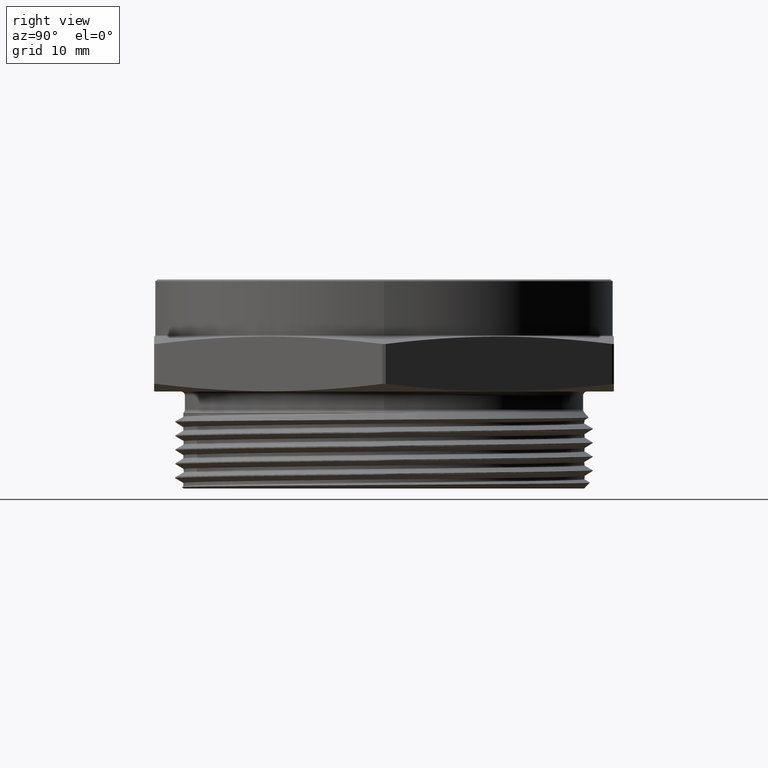
[diagram: clean part render]
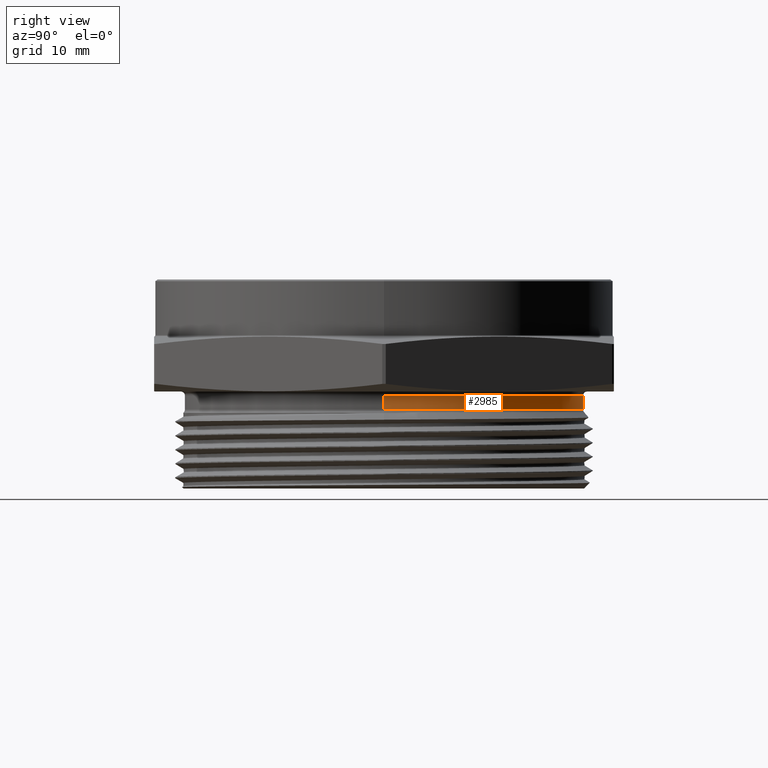
[diagram: same view with one face highlighted and labeled with its STEP entity id]
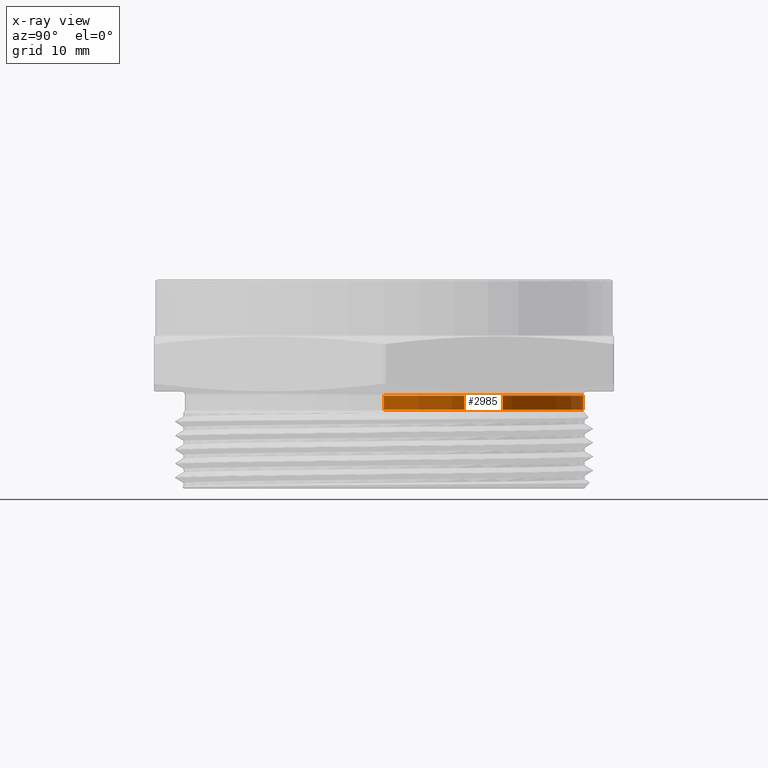
[diagram: x-ray of the same camera — body ghosted, the highlighted face saturated]
A machine part, right view. The second image highlights one B-rep face of the part: STEP entity #2985.
The next image is the same camera in x-ray: the body ghosted, the highlighted face saturated — about 0% of this face is hidden behind the body in this view.
In plain terms, the highlighted cylindrical surface (partial cylindrical patch) has radius 30.2387 mm, axis along (-0, -0, 1).
Its self-contained STEP definition (entity closure, byte-faithful):
#44 = VERTEX_POINT ( 'NONE', #3312 ) ;
#51 = VERTEX_POINT ( 'NONE', #3307 ) ;
#60 = VERTEX_POINT ( 'NONE', #3298 ) ;
#65 = VERTEX_POINT ( 'NONE', #3293 ) ;
#136 = ORIENTED_EDGE ( 'NONE', *, *, #2729, .T. ) ;
#137 = ORIENTED_EDGE ( 'NONE', *, *, #2730, .T. ) ;
#138 = ORIENTED_EDGE ( 'NONE', *, *, #2731, .F. ) ;
#139 = ORIENTED_EDGE ( 'NONE', *, *, #2732, .F. ) ;
#281 = EDGE_LOOP ( 'NONE', ( #136, #137, #138, #139 ) ) ;
#339 = CIRCLE ( 'NONE', #2852, 1.190499999999999900 ) ;
#341 = LINE ( 'NONE', #2649, #344 ) ;
#342 = LINE ( 'NONE', #2641, #347 ) ;
#343 = CIRCLE ( 'NONE', #2853, 1.190499999999999900 ) ;
#344 = VECTOR ( 'NONE', #2653, 39.37007874015748100 ) ;
#347 = VECTOR ( 'NONE', #2656, 39.37007874015748100 ) ;
#535 = FACE_OUTER_BOUND ( 'NONE', #281, .T. ) ;
#546 = CYLINDRICAL_SURFACE ( 'NONE', #1934, 1.190499999999999900 ) ;
#1816 = DIRECTION ( 'NONE',  ( 1.000000000000000000, 0.0000000000000000000, 0.0000000000000000000 ) ) ;
#1818 = CARTESIAN_POINT ( 'NONE',  ( 0.0000000000000000000, 0.0000000000000000000, 0.0000000000000000000 ) ) ;
#1819 = DIRECTION ( 'NONE',  ( -0.0000000000000000000, -0.0000000000000000000, 1.000000000000000000 ) ) ;
#1934 = AXIS2_PLACEMENT_3D ( 'NONE', #1818, #1819, #1816 ) ;
#2637 = DIRECTION ( 'NONE',  ( 1.000000000000000000, 0.0000000000000000000, 0.0000000000000000000 ) ) ;
#2638 = DIRECTION ( 'NONE',  ( -0.0000000000000000000, -0.0000000000000000000, 1.000000000000000000 ) ) ;
#2639 = CARTESIAN_POINT ( 'NONE',  ( 0.0000000000000000000, 0.0000000000000000000, -0.02500000000000002900 ) ) ;
#2641 = CARTESIAN_POINT ( 'NONE',  ( 1.190499999999999900, 0.0000000000000000000, 0.0000000000000000000 ) ) ;
#2646 = DIRECTION ( 'NONE',  ( 1.000000000000000000, 0.0000000000000000000, 0.0000000000000000000 ) ) ;
#2647 = DIRECTION ( 'NONE',  ( -0.0000000000000000000, -0.0000000000000000000, 1.000000000000000000 ) ) ;
#2648 = CARTESIAN_POINT ( 'NONE',  ( 0.0000000000000000000, 0.0000000000000000000, -0.1073223304703360800 ) ) ;
#2649 = CARTESIAN_POINT ( 'NONE',  ( -1.190499999999999900, 1.457942014384923800E-016, 0.0000000000000000000 ) ) ;
#2653 = DIRECTION ( 'NONE',  ( -0.0000000000000000000, -0.0000000000000000000, 1.000000000000000000 ) ) ;
#2656 = DIRECTION ( 'NONE',  ( -0.0000000000000000000, -0.0000000000000000000, 1.000000000000000000 ) ) ;
#2729 = EDGE_CURVE ( 'NONE', #44, #65, #339, .T. ) ;
#2730 = EDGE_CURVE ( 'NONE', #65, #51, #341, .T. ) ;
#2731 = EDGE_CURVE ( 'NONE', #60, #51, #343, .T. ) ;
#2732 = EDGE_CURVE ( 'NONE', #44, #60, #342, .T. ) ;
#2852 = AXIS2_PLACEMENT_3D ( 'NONE', #2648, #2647, #2646 ) ;
#2853 = AXIS2_PLACEMENT_3D ( 'NONE', #2639, #2638, #2637 ) ;
#2985 = ADVANCED_FACE ( 'NONE', ( #535 ), #546, .T. ) ;
#3293 = CARTESIAN_POINT ( 'NONE',  ( -1.190499999999999900, 1.462425648671322000E-016, -0.1073223304703360800 ) ) ;
#3298 = CARTESIAN_POINT ( 'NONE',  ( 1.190499999999999900, 0.0000000000000000000, -0.02500000000000002900 ) ) ;
#3307 = CARTESIAN_POINT ( 'NONE',  ( -1.190499999999999900, 1.457942014384923800E-016, -0.02500000000000002900 ) ) ;
#3312 = CARTESIAN_POINT ( 'NONE',  ( 1.190499999999999900, 0.0000000000000000000, -0.1073223304703360800 ) ) ;